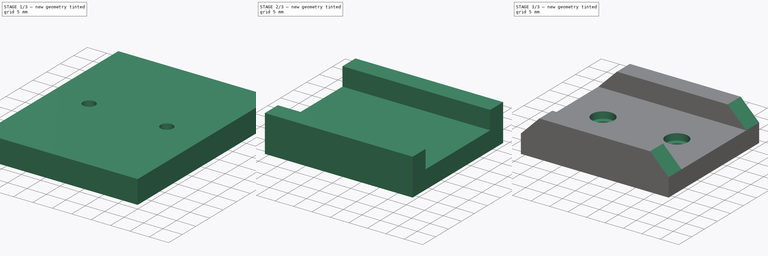
[diagram: build sequence overview — one tinted view per stage of 3, left to right]
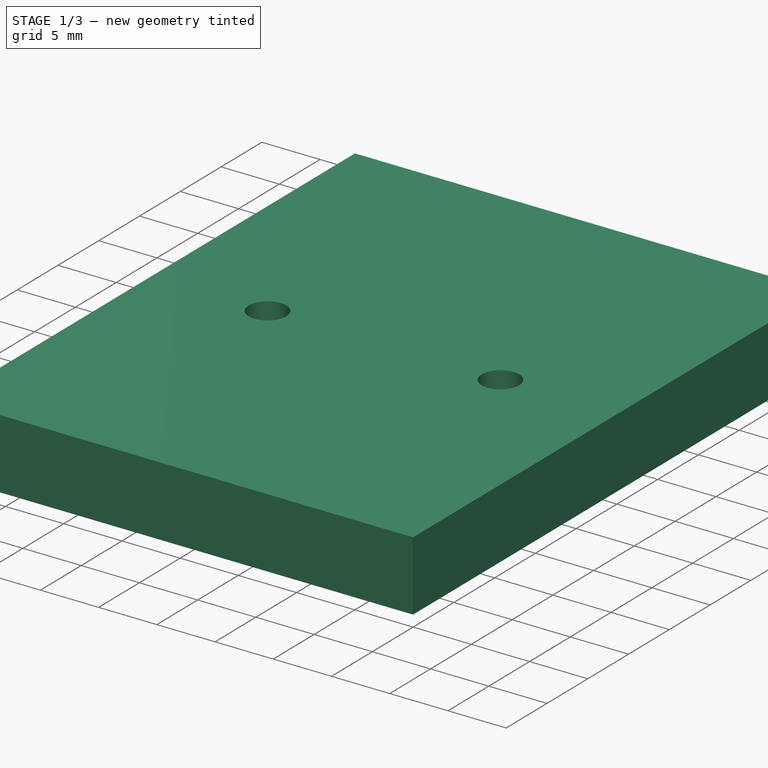
[diagram: stage 1 of 3 — iso view after this stage's code; geometry added in this stage tinted green]
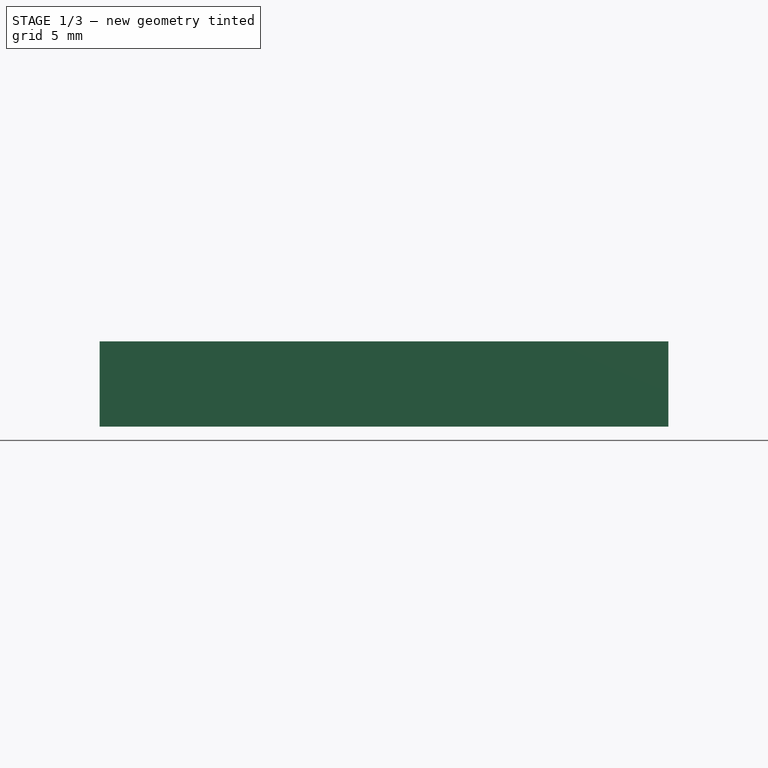
[diagram: stage 1 of 3 — front view after this stage's code; geometry added in this stage tinted green]
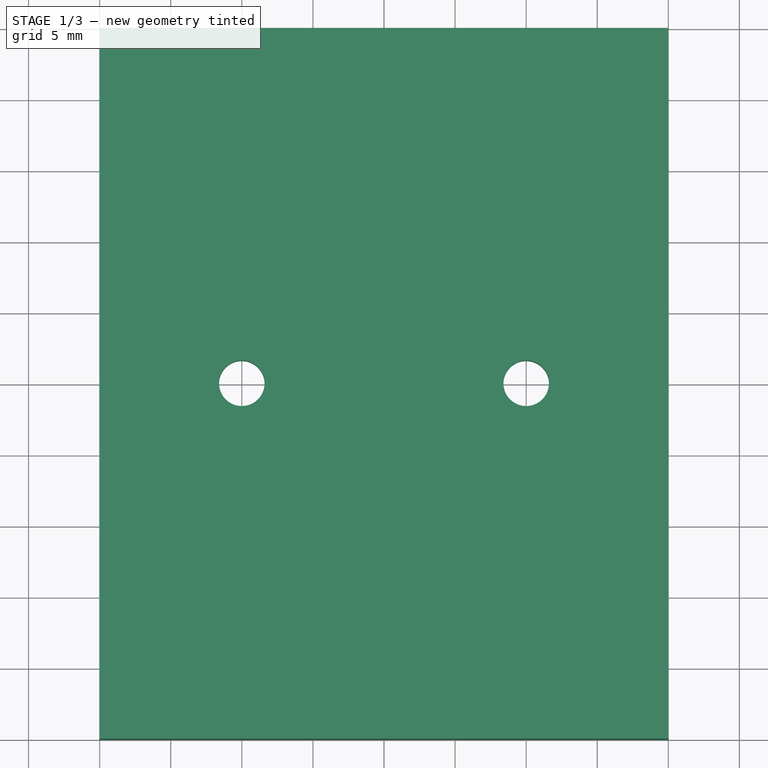
[diagram: stage 1 of 3 — top view after this stage's code; geometry added in this stage tinted green]
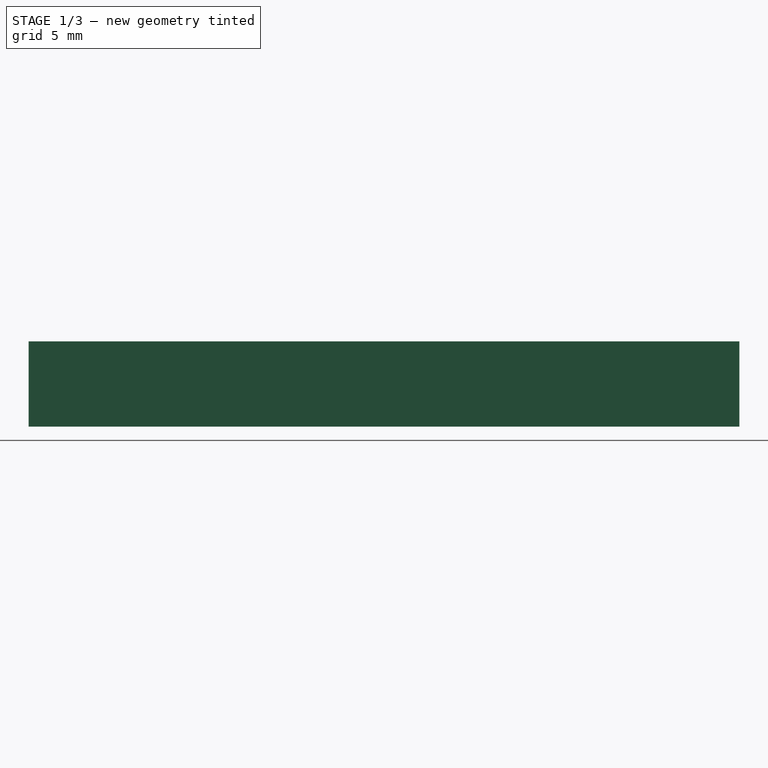
[diagram: stage 1 of 3 — right view after this stage's code; geometry added in this stage tinted green]
FCSTD DOCUMENT  (FreeCAD 0.18.4R)
Label: sand-paper-holder
License: CreativeCommons Attribution-ShareAlike
LicenseURL: http://creativecommons.org/licenses/by-sa/4.0/
objects: PartDesign::ShapeBinder×7, Sketcher::SketchObject×6, PartDesign::Line×6, PartDesign::Pad×3, PartDesign::Pocket×2, PartDesign::Body×2, PartDesign::Hole×1, PartDesign::Plane×1
note: 34 computed .brp shape members not serialized (recipe doc carries the construction recipe); baked Part::Feature solids carry a one-line shape summary decoded from their .brp

FEATURE [Sketcher::SketchObject] Sketch
  MapMode = 5
  Support = -> [XY_Plane]
  sketch-geometry (8):
    g0: LineSegment StartX=-20 StartY=25 StartZ=0 EndX=20 EndY=25 EndZ=0
    g1: LineSegment StartX=20 StartY=25 StartZ=0 EndX=20 EndY=-25 EndZ=0
    g2: LineSegment StartX=20 StartY=-25 StartZ=0 EndX=-20 EndY=-25 EndZ=0
    g3: LineSegment StartX=-20 StartY=-25 StartZ=0 EndX=-20 EndY=25 EndZ=0
    g4: LineSegment [constr] StartX=-15 StartY=25 StartZ=0 EndX=-15 EndY=-25 EndZ=0
    g5: LineSegment [constr] StartX=15 StartY=25 StartZ=0 EndX=15 EndY=-25 EndZ=0
    g6: Circle CenterX=-10 CenterY=0 CenterZ=0 NormalX=0 NormalY=0 NormalZ=1 AngleXU=0 Radius=1.6
    g7: Circle CenterX=10 CenterY=0 CenterZ=0 NormalX=0 NormalY=0 NormalZ=1 AngleXU=0 Radius=1.6
  constraints (24):
    c: Coincident(g0,g1)
    c: Coincident(g1,g2)
    c: Coincident(g2,g3)
    c: Coincident(g3,g0)
    c: Horizontal(g0)
    c: Horizontal(g2)
    c: Vertical(g1)
    c: Vertical(g3)
    c: Symmetric(g0,g1,g-1)
    c: DistanceY(g3,g3) = 50
    c: DistanceX(g0,g0) = 40
    c: Vertical(g4)
    c: Vertical(g5)
    c: PointOnObject(g5,g0)
    c: PointOnObject(g4,g0)
    c: PointOnObject(g4,g2)
    c: PointOnObject(g5,g2)
    c: DistanceX(g2,g4) = 5
    c: DistanceX(g5,g1) = 5
    c: Diameter(g7) = 3.2
    c: Equal(g7,g6)
    c: PointOnObject(g6,g-1)
    c: Symmetric(g6,g7,g-2)
    c: DistanceX(g6,g7) = 20
FEATURE [PartDesign::Pad] Pad
  Length = 6
  Length2 = 100
  Profile = -> Sketch
  Refine = true
  Type = 0
FEATURE [Sketcher::SketchObject] Sketch001
  ExternalGeometry = -> [Pad]
  MapMode = 5
  Placement = pos=(0,0,0) rot=(1,0,0;3.14159rad)
  Support = -> [Pad]
  sketch-geometry (14):
    g0: LineSegment StartX=-8.41229 StartY=-2.75 StartZ=0 EndX=-6.82457 EndY=1.488e-13 EndZ=0
    g1: LineSegment StartX=-6.82457 StartY=1.488e-13 StartZ=0 EndX=-8.41229 EndY=2.75 EndZ=0
    g2: LineSegment StartX=-8.41229 StartY=2.75 StartZ=0 EndX=-11.5877 EndY=2.75 EndZ=0
    g3: LineSegment StartX=-11.5877 StartY=2.75 StartZ=0 EndX=-13.1754 EndY=-2.75e-14 EndZ=0
    g4: LineSegment StartX=-13.1754 StartY=-2.76e-14 StartZ=0 EndX=-11.5877 EndY=-2.75 EndZ=0
    g5: LineSegment StartX=-11.5877 StartY=-2.75 StartZ=0 EndX=-8.41229 EndY=-2.75 EndZ=0
    g6: Circle [constr] CenterX=-10 CenterY=0 CenterZ=0 NormalX=0 NormalY=0 NormalZ=1 AngleXU=0 Radius=3.17543
    g7: LineSegment StartX=11.5877 StartY=-2.75 StartZ=0 EndX=13.1754 EndY=-6.48e-14 EndZ=0
    g8: LineSegment StartX=13.1754 StartY=-6.48e-14 StartZ=0 EndX=11.5877 EndY=2.75 EndZ=0
    g9: LineSegment StartX=11.5877 StartY=2.75 StartZ=0 EndX=8.41229 EndY=2.75 EndZ=0
    g10: LineSegment StartX=8.41229 StartY=2.75 StartZ=0 EndX=6.82457 EndY=5.73e-14 EndZ=0
    g11: LineSegment StartX=6.82457 StartY=5.73e-14 StartZ=0 EndX=8.41229 EndY=-2.75 EndZ=0
    g12: LineSegment StartX=8.41229 StartY=-2.75 StartZ=0 EndX=11.5877 EndY=-2.75 EndZ=0
    g13: Circle [constr] CenterX=10 CenterY=0 CenterZ=0 NormalX=0 NormalY=0 NormalZ=1 AngleXU=0 Radius=3.17543
  constraints (32):
    c: Coincident(g0,g1)
    c: Coincident(g1,g2)
    c: Coincident(g2,g3)
    c: Coincident(g3,g4)
    c: Coincident(g4,g5)
    c: Coincident(g5,g0)
    c: Equal(g0, g1-g5) x5
    c: PointOnObject(g0,g6)
    c: PointOnObject(g1,g6)
    c: PointOnObject(g2,g6)
    c: PointOnObject(g3,g6)
    c: PointOnObject(g4,g6)
    c: PointOnObject(g5,g6)
    c: Coincident(g7,g8)
    c: Coincident(g8,g9)
    c: Coincident(g9,g10)
    c: Coincident(g10,g11)
    c: Coincident(g11,g12)
    c: Coincident(g12,g7)
    c: Equal(g7, g8-g12) x5
    c: PointOnObject(g7,g13)
    c: PointOnObject(g8,g13)
    c: PointOnObject(g9,g13)
    c: PointOnObject(g10,g13)
    c: PointOnObject(g11,g13)
    c: PointOnObject(g12,g13)
    c: Horizontal(g2)
    c: Horizontal(g9)
    c: DistanceY(g0,g1) = 5.5
    c: Coincident(g6,g-3)
    c: Equal(g6,g13)
    c: Coincident(g13,g-4)
FEATURE [PartDesign::Pocket] Pocket
  BaseFeature = -> Pad
  Length = 3
  Length2 = 100
  Profile = -> Sketch001
  Refine = true
  Type = 0
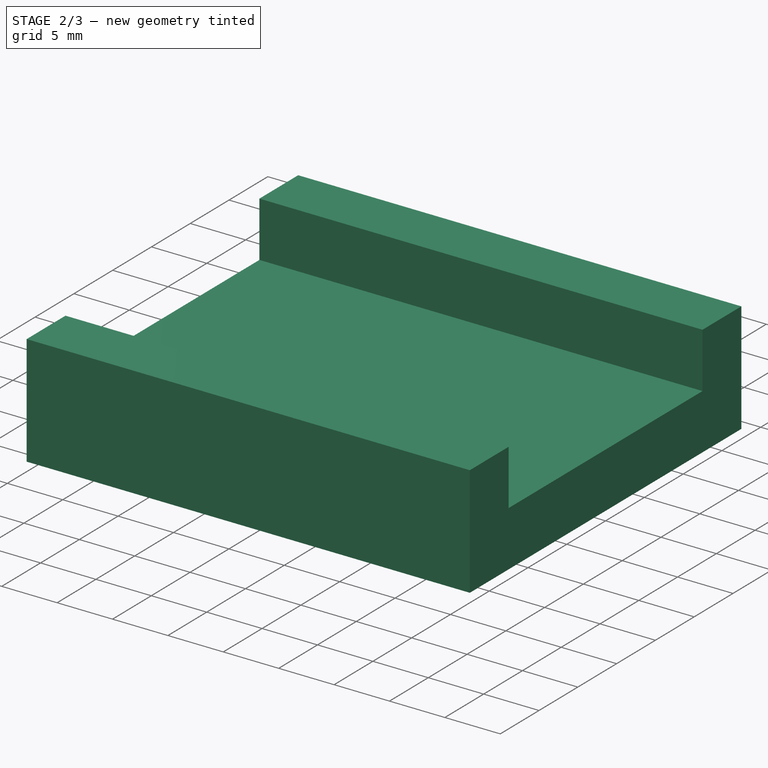
[diagram: stage 2 of 3 — iso view after this stage's code; geometry added in this stage tinted green]
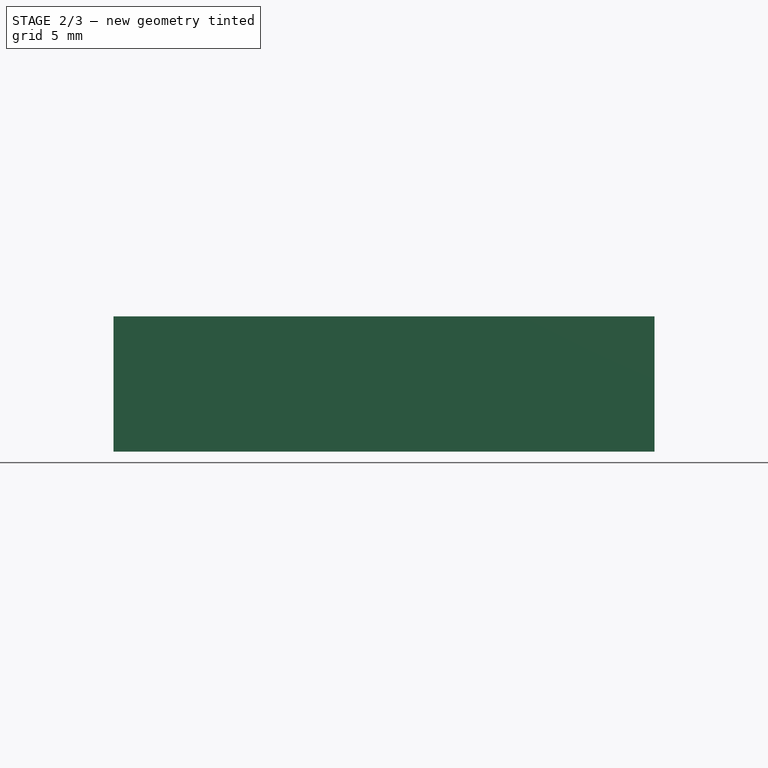
[diagram: stage 2 of 3 — front view after this stage's code; geometry added in this stage tinted green]
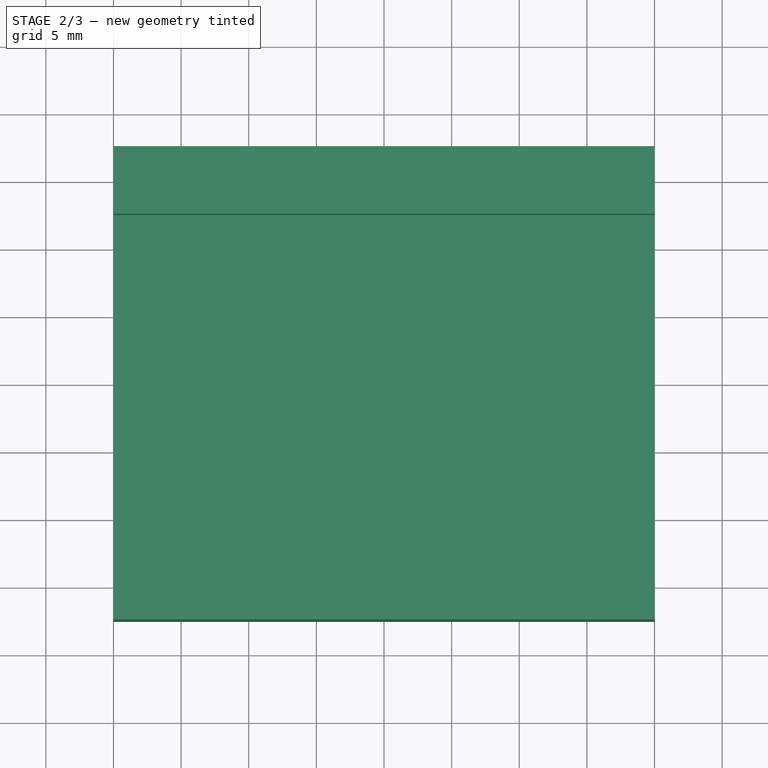
[diagram: stage 2 of 3 — top view after this stage's code; geometry added in this stage tinted green]
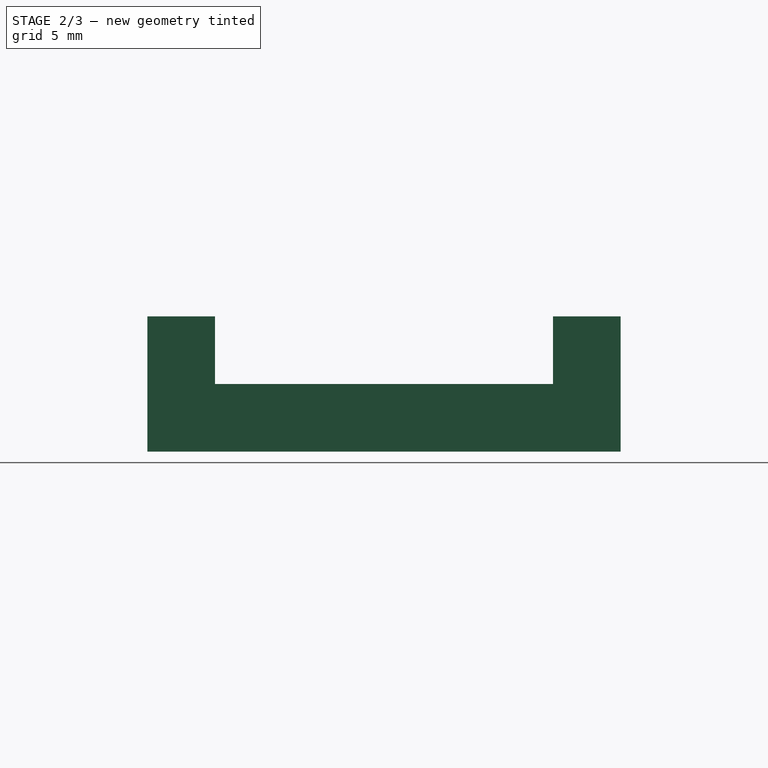
[diagram: stage 2 of 3 — right view after this stage's code; geometry added in this stage tinted green]
FEATURE [PartDesign::Body] Body
  Group = -> [Sketch,Pad,Sketch001,Pocket]
  Origin = -> Origin
  Tip = -> Pocket
FEATURE [PartDesign::ShapeBinder] CopyPocket
  Placement = pos=(0,0,6) rot=(0,0,1;0rad)
  TraceSupport = false
FEATURE [PartDesign::ShapeBinder] CopyPocket001
  Placement = pos=(0,0,6) rot=(0,0,1;0rad)
  TraceSupport = false
FEATURE [PartDesign::Line] DatumLine
  AttacherType = Attacher::AttachEngineLine
  MapMode = 29
  Placement = pos=(-20,0,6) rot=(0,0.707107,0.707107;3.14159rad)
  Support = -> [CopyPocket001]
FEATURE [PartDesign::ShapeBinder] CopyPocket002
  Placement = pos=(0,0,6) rot=(0,0,1;0rad)
  TraceSupport = false
FEATURE [PartDesign::Line] DatumLine001
  AttacherType = Attacher::AttachEngineLine
  MapMode = 29
  Placement = pos=(20,0,6) rot=(1,0,0;1.5708rad)
  Support = -> [CopyPocket002]
FEATURE [PartDesign::ShapeBinder] CopyPocket003
  Placement = pos=(0,0,6) rot=(0,0,1;0rad)
  TraceSupport = false
FEATURE [PartDesign::Line] DatumLine002
  AttacherType = Attacher::AttachEngineLine
  MapMode = 29
  Placement = pos=(0,-25,6) rot=(0.57735,-0.57735,-0.57735;2.0944rad)
  Support = -> [CopyPocket003]
FEATURE [PartDesign::ShapeBinder] CopyPocket004
  Placement = pos=(0,0,6) rot=(0,0,1;0rad)
  TraceSupport = false
FEATURE [PartDesign::Line] DatumLine003
  AttacherType = Attacher::AttachEngineLine
  MapMode = 29
  Placement = pos=(0,25,6) rot=(0.57735,0.57735,0.57735;2.0944rad)
  Support = -> [CopyPocket004]
FEATURE [PartDesign::Line] DatumLine004
  AttacherType = Attacher::AttachEngineLine
  MapMode = 19
  Placement = pos=(-10,0,3) rot=(-1,0,0;3.14159rad)
  Support = -> [Pocket]
FEATURE [PartDesign::ShapeBinder] CopyPocket005
  Placement = pos=(0,0,6) rot=(0,0,1;0rad)
  TraceSupport = false
FEATURE [PartDesign::Line] DatumLine005
  AttacherType = Attacher::AttachEngineLine
  MapMode = 19
  Placement = pos=(10,0,3) rot=(-1,0,0;3.14159rad)
  Support = -> [Pocket]
FEATURE [Sketcher::SketchObject] Sketch002
  ExternalGeometry = -> [DatumLine,DatumLine001,DatumLine004,DatumLine005]
  MapMode = 5
  Placement = pos=(0,0,6) rot=(0,0,1;0rad)
  Support = -> [CopyPocket]
  sketch-geometry (4):
    g0: LineSegment StartX=-20 StartY=17.5 StartZ=0 EndX=20 EndY=17.5 EndZ=0
    g1: LineSegment StartX=20 StartY=17.5 StartZ=0 EndX=20 EndY=-17.5 EndZ=0
    g2: LineSegment StartX=20 StartY=-17.5 StartZ=0 EndX=-20 EndY=-17.5 EndZ=0
    g3: LineSegment StartX=-20 StartY=-17.5 StartZ=0 EndX=-20 EndY=17.5 EndZ=0
  constraints (11):
    c: Coincident(g0,g1)
    c: Coincident(g1,g2)
    c: Coincident(g2,g3)
    c: Coincident(g3,g0)
    c: Horizontal(g0)
    c: Horizontal(g2)
    c: Vertical(g1)
    c: Vertical(g3)
    c: Symmetric(g0,g1,g-1)
    c: PointOnObject(g0,g-3)
    c: DistanceY(g3,g3) = 35
FEATURE [PartDesign::ShapeBinder] CopyPocket006
  Placement = pos=(0,0,6) rot=(0,0,1;0rad)
  TraceSupport = false
FEATURE [PartDesign::Pad] Pad001
  Length = 5
  Length2 = 100
  Placement = pos=(0,0,6) rot=(0,0,1;0rad)
  Profile = -> Sketch002
  Refine = true
  Type = 0
FEATURE [Sketcher::SketchObject] Sketch003
  ExternalGeometry = -> [Pad001]
  MapMode = 5
  Placement = pos=(0,0,11) rot=(0,0,1;0rad)
  Support = -> [Pad001]
  sketch-geometry (8):
    g0: LineSegment StartX=-20 StartY=17.5 StartZ=0 EndX=20 EndY=17.5 EndZ=0
    g1: LineSegment StartX=20 StartY=17.5 StartZ=0 EndX=20 EndY=12.5 EndZ=0
    g2: LineSegment StartX=20 StartY=12.5 StartZ=0 EndX=-20 EndY=12.5 EndZ=0
    g3: LineSegment StartX=-20 StartY=12.5 StartZ=0 EndX=-20 EndY=17.5 EndZ=0
    g4: LineSegment StartX=-20 StartY=-12.5 StartZ=0 EndX=20 EndY=-12.5 EndZ=0
    g5: LineSegment StartX=20 StartY=-12.5 StartZ=0 EndX=20 EndY=-17.5 EndZ=0
    g6: LineSegment StartX=20 StartY=-17.5 StartZ=0 EndX=-20 EndY=-17.5 EndZ=0
    g7: LineSegment StartX=-20 StartY=-17.5 StartZ=0 EndX=-20 EndY=-12.5 EndZ=0
  constraints (22):
    c: Coincident(g0,g1)
    c: Coincident(g1,g2)
    c: Coincident(g2,g3)
    c: Coincident(g3,g0)
    c: Horizontal(g0)
    c: Horizontal(g2)
    c: Vertical(g1)
    c: Vertical(g3)
    c: Coincident(g4,g5)
    c: Coincident(g5,g6)
    c: Coincident(g6,g7)
    c: Coincident(g7,g4)
    c: Horizontal(g4)
    c: Horizontal(g6)
    c: Vertical(g5)
    c: Vertical(g7)
    c: Coincident(g5,g-6)
    c: PointOnObject(g4,g-4)
    c: Coincident(g0,g-4)
    c: PointOnObject(g1,g-5)
    c: Equal(g3,g7)
    c: DistanceY(g3,g3) = 5
FEATURE [PartDesign::Pad] Pad002
  BaseFeature = -> Pad001
  Length = 5
  Length2 = 100
  Placement = pos=(0,0,6) rot=(0,0,1;0rad)
  Profile = -> Sketch003
  Refine = true
  Type = 0
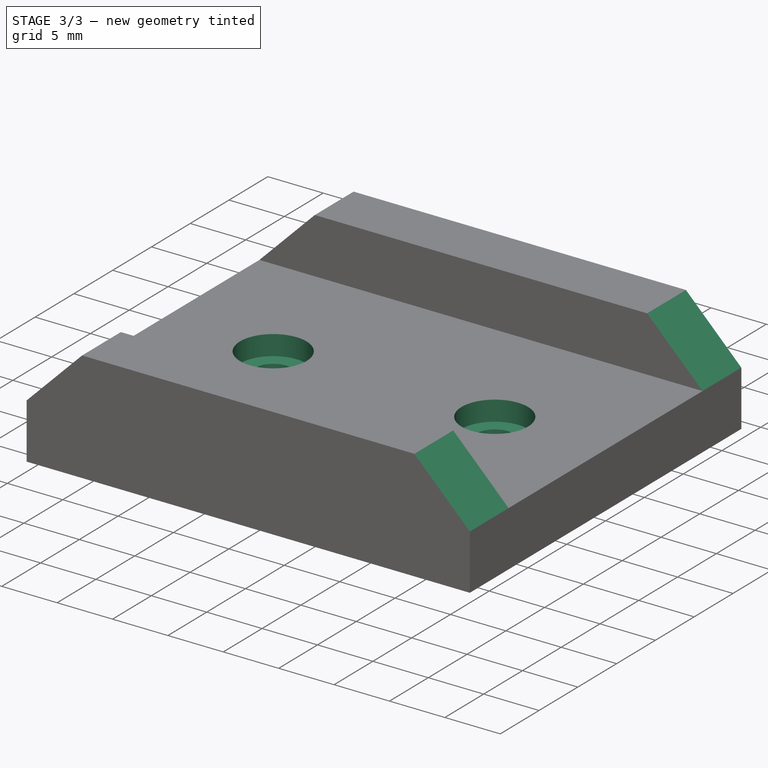
[diagram: stage 3 of 3 — iso view after this stage's code; geometry added in this stage tinted green]
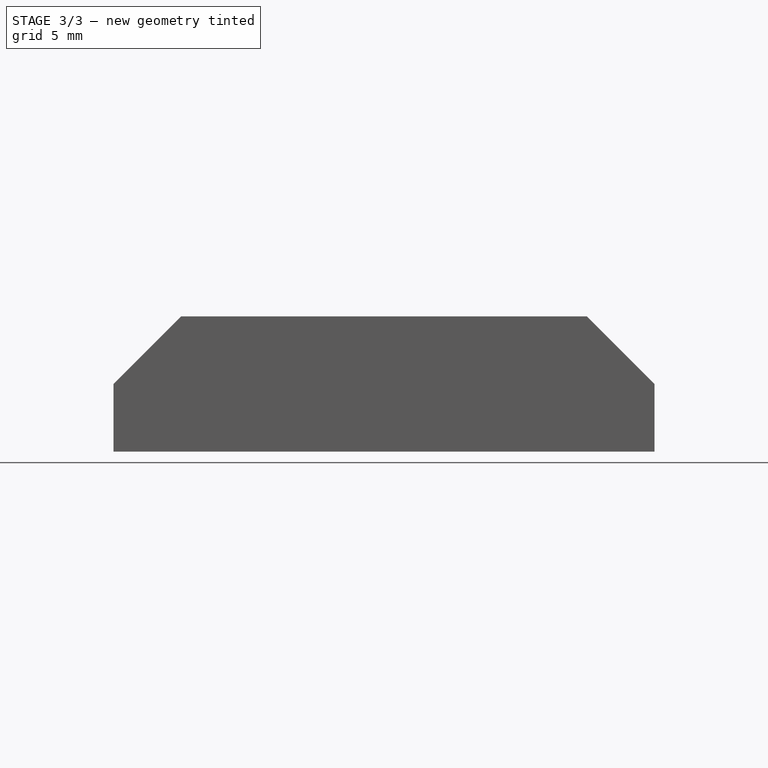
[diagram: stage 3 of 3 — front view after this stage's code; geometry added in this stage tinted green]
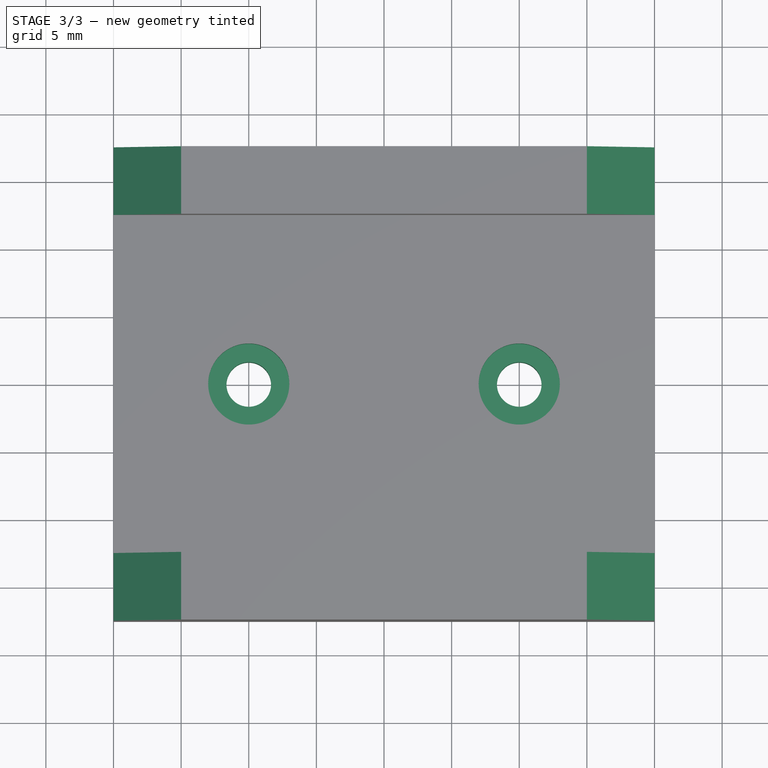
[diagram: stage 3 of 3 — top view after this stage's code; geometry added in this stage tinted green]
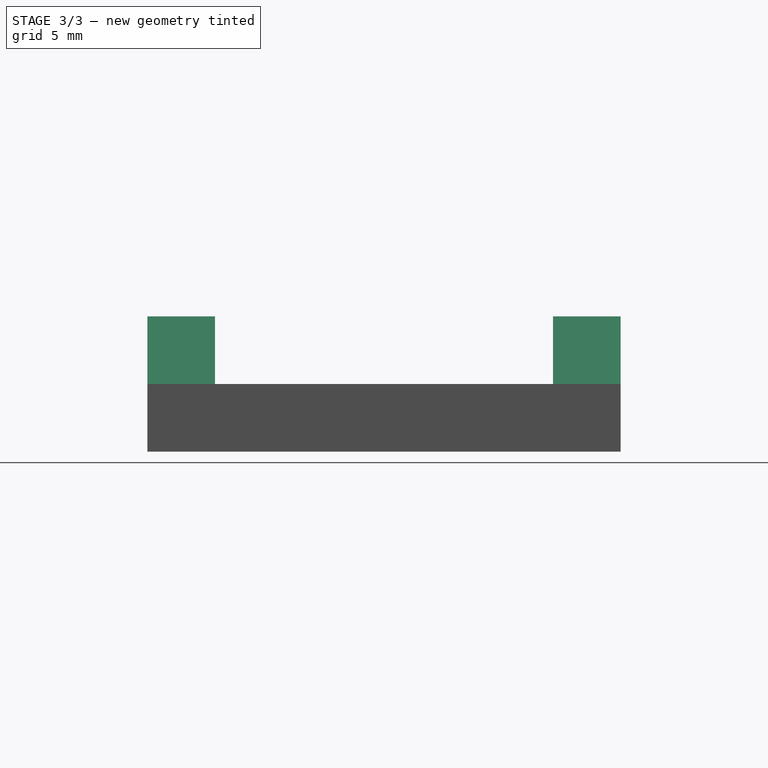
[diagram: stage 3 of 3 — right view after this stage's code; geometry added in this stage tinted green]
FEATURE [Sketcher::SketchObject] Sketch004
  ExternalGeometry = -> [DatumLine005,DatumLine004]
  MapMode = 5
  Placement = pos=(0,0,11) rot=(0,0,1;0rad)
  Support = -> [Pad002]
  sketch-geometry (2):
    g0: Circle CenterX=-10 CenterY=0 CenterZ=0 NormalX=0 NormalY=0 NormalZ=1 AngleXU=0 Radius=1.5
    g1: Circle CenterX=10 CenterY=0 CenterZ=0 NormalX=0 NormalY=0 NormalZ=1 AngleXU=0 Radius=1.5
  constraints (4):
    c: Coincident(g0,g-4)
    c: Coincident(g1,g-3)
    c: Equal(g0,g1)
    c: Diameter(g0) = 3
FEATURE [PartDesign::Hole] Hole
  BaseFeature = -> Pad002
  Depth = 25
  DepthType = 0
  Diameter = 3.3
  DrillPoint = 1
  DrillPointAngle = 118
  HoleCutCountersinkAngle = 90
  HoleCutDepth = 1.8
  HoleCutDiameter = 6
  HoleCutType = 1
  ModelActualThread = false
  Placement = pos=(0,0,6) rot=(0,0,1;0rad)
  Profile = -> Sketch004
  Refine = true
  Tapered = false
  TaperedAngle = 90
  ThreadAngle = 0
  ThreadClass = 0
  ThreadCutOffInner = 0
  ThreadCutOffOuter = 0
  ThreadDirection = 0
  ThreadFit = 0
  ThreadPitch = 0
  ThreadSize = 3
  ThreadType = 1
  Threaded = false
FEATURE [PartDesign::Plane] DatumPlane
  Length = 48.9443
  MapMode = 5
  Placement = pos=(0,0,11) rot=(0,0,1;0rad)
  ResizeMode = 0
  Support = -> [Hole]
  Width = 58.9443
FEATURE [Sketcher::SketchObject] Sketch005
  ExternalGeometry = -> [DatumPlane,Hole]
  MapMode = 5
  Placement = pos=(0,-17.5,6) rot=(1,0,0;1.5708rad)
  Support = -> [Hole]
  sketch-geometry (6):
    g0: LineSegment StartX=-20 StartY=14.5565 StartZ=0 EndX=20 EndY=14.5565 EndZ=0
    g1: LineSegment StartX=20 StartY=14.5565 StartZ=0 EndX=20 EndY=5 EndZ=0
    g2: LineSegment StartX=20 StartY=5 StartZ=0 EndX=15 EndY=10 EndZ=0
    g3: LineSegment StartX=15 StartY=10 StartZ=0 EndX=-15 EndY=10 EndZ=0
    g4: LineSegment StartX=-15 StartY=10 StartZ=0 EndX=-20 EndY=5 EndZ=0
    g5: LineSegment StartX=-20 StartY=5 StartZ=0 EndX=-20 EndY=14.5565 EndZ=0
  constraints (15):
    c: Horizontal(g0)
    c: Coincident(g0,g1)
    c: Vertical(g1)
    c: Coincident(g1,g2)
    c: Coincident(g2,g3)
    c: Coincident(g3,g4)
    c: Coincident(g4,g5)
    c: Vertical(g5)
    c: Coincident(g0,g5)
    c: PointOnObject(g4,g-3)
    c: Symmetric(g4,g1,g-2)
    c: Symmetric(g3,g2,g-2)
    c: Angle(g-3,g4) = 0.785398
    c: PointOnObject(g4,g-4)
    c: PointOnObject(g3,g-5)
FEATURE [PartDesign::Pocket] Pocket001
  BaseFeature = -> Hole
  Length = 5
  Length2 = 100
  Placement = pos=(0,0,6) rot=(0,0,1;0rad)
  Profile = -> Sketch005
  Refine = true
  Type = 1
FEATURE [PartDesign::Body] Body001
  Group = -> [DatumLine002,DatumLine003,DatumLine001,CopyPocket003,CopyPocket002,CopyPocket004,CopyPocket001,CopyPocket,DatumLine,DatumLine004,CopyPocket005,DatumLine005,CopyPocket006,Sketch002,Pad001,Sketch003,Pad002,Sketch004,Hole,DatumPlane,Sketch005,Pocket001]
  Origin = -> Origin001
  Tip = -> Pocket001
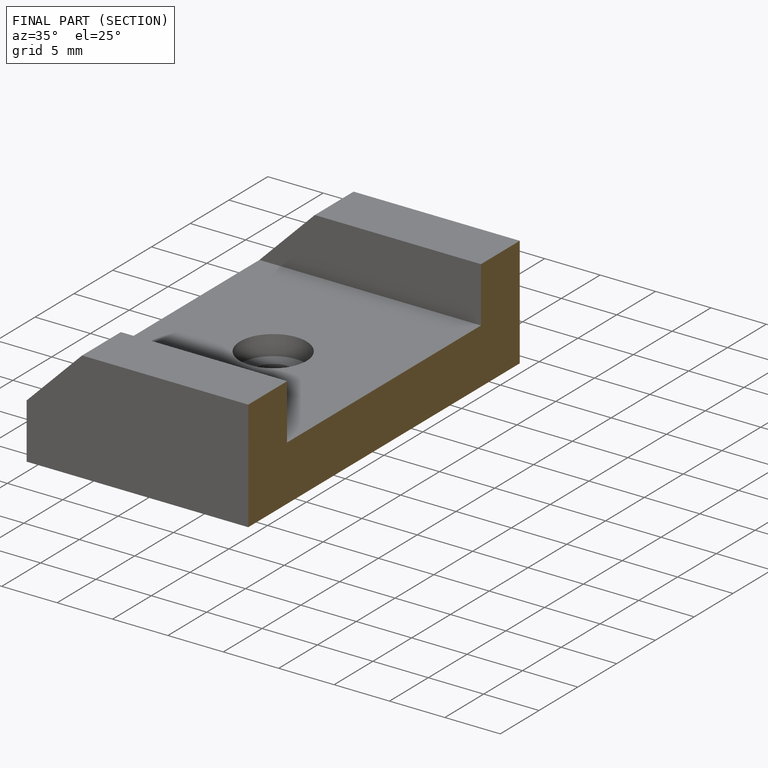
[diagram: finished part — half-section view (interior)]
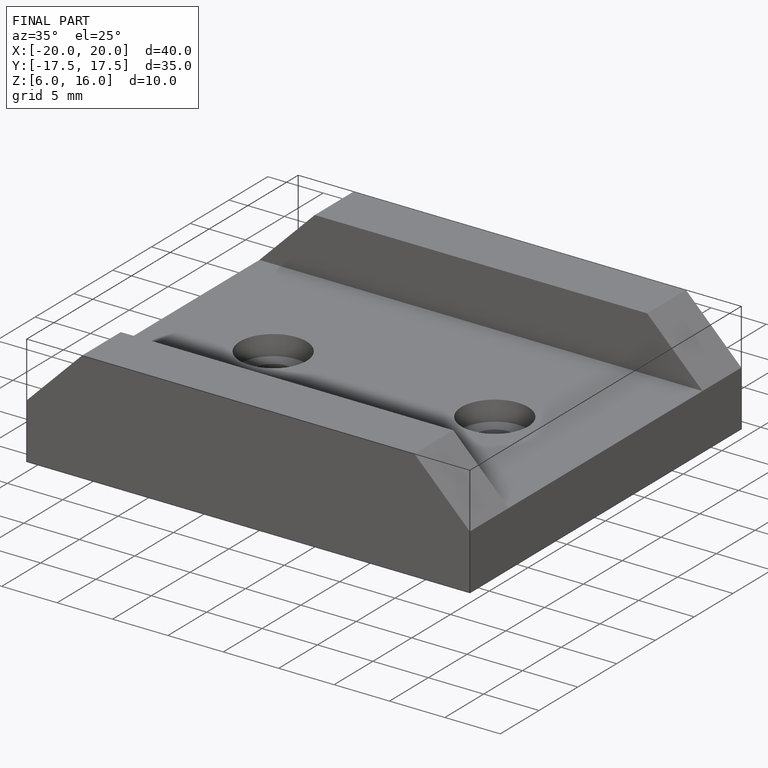
[diagram: finished part — iso view with bounding-box wireframe]
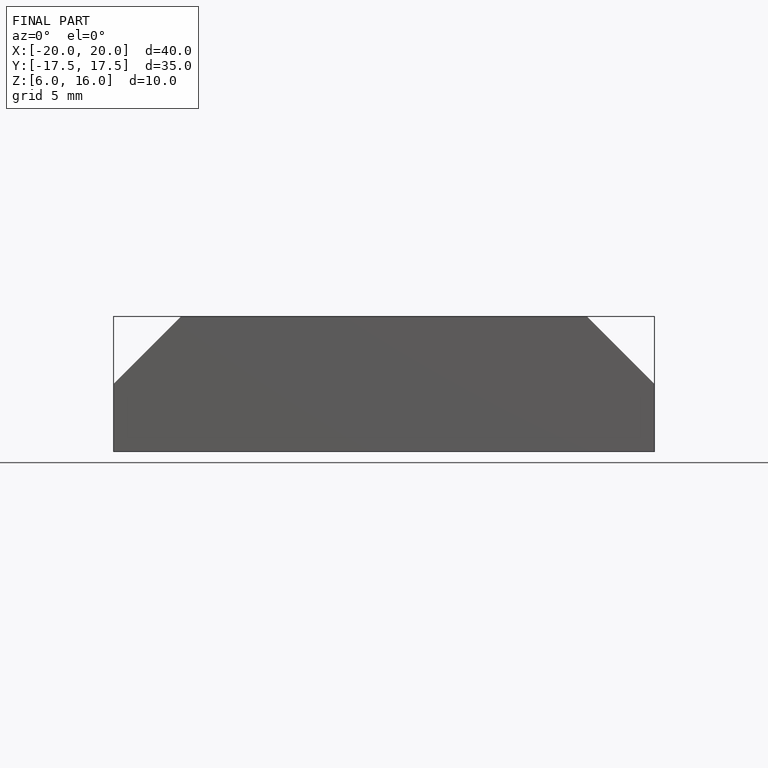
[diagram: finished part — front view with bounding-box wireframe]
